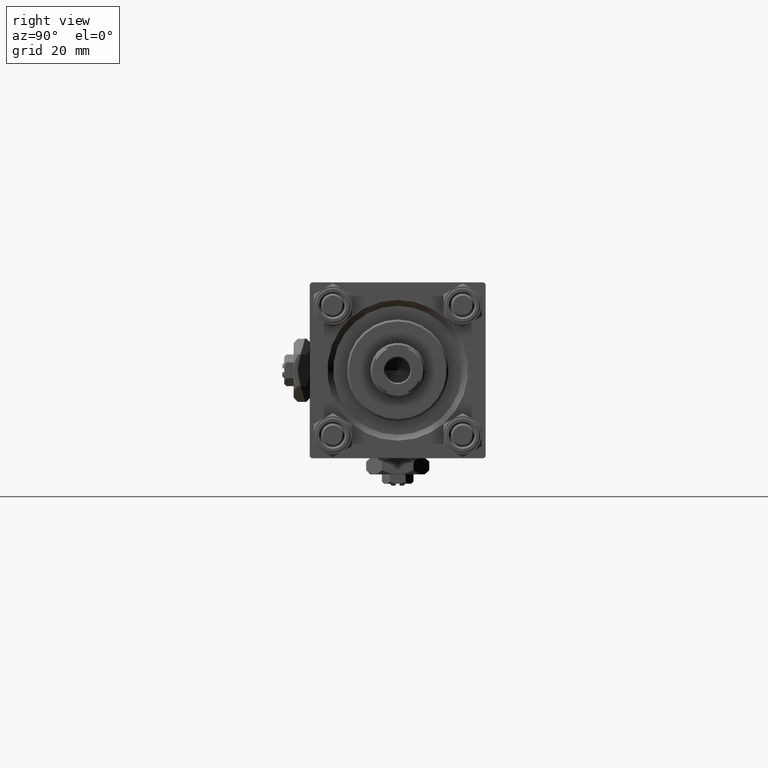
[diagram: clean part render]
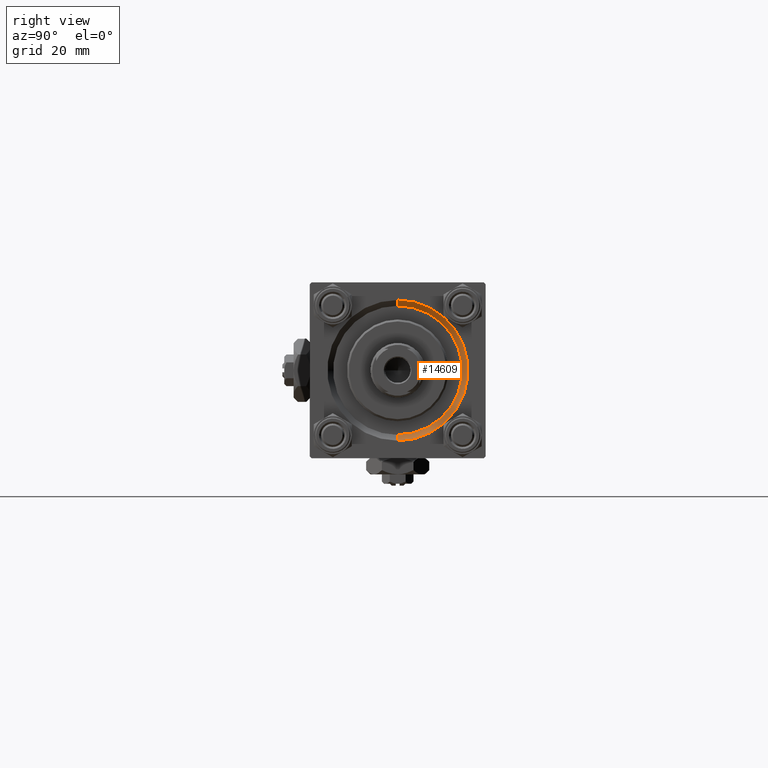
[diagram: same view with one face highlighted and labeled with its STEP entity id]
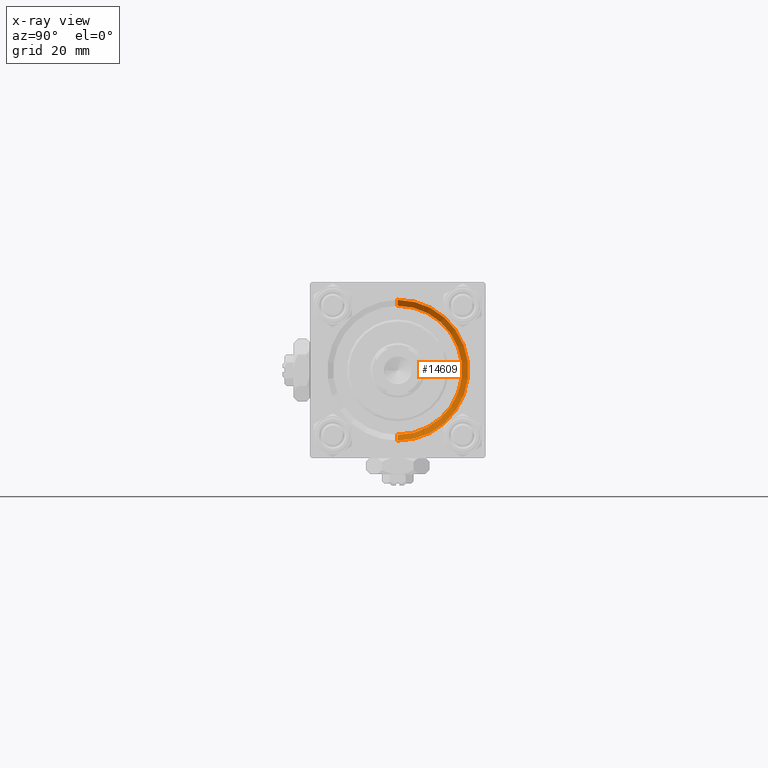
[diagram: x-ray of the same camera — body ghosted, the highlighted face saturated]
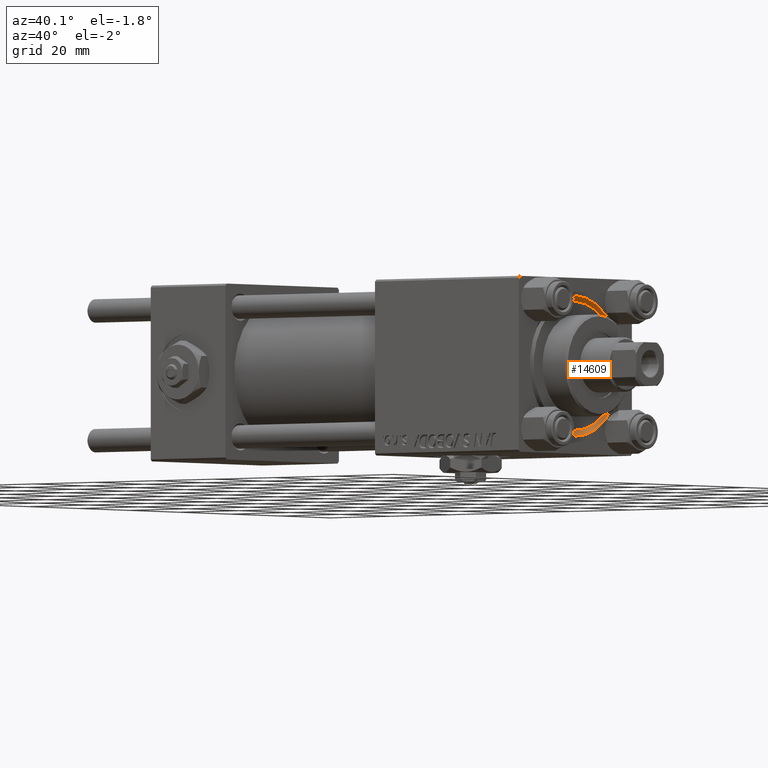
[diagram: same view with one face highlighted and labeled with its STEP entity id]
A machine part, right view. The second image highlights one B-rep face of the part: STEP entity #14609.
The next image is the same camera in x-ray: the body ghosted, the highlighted face saturated — about 0% of this face is hidden behind the body in this view.
A second angle (auxiliary view) of the same face is appended — the face is thin or edge-on in the first view.
In plain terms, the highlighted conical surface has half-angle 45 deg.
Its self-contained STEP definition (entity closure, byte-faithful):
#1218 = ORIENTED_EDGE ( 'NONE', *, *, #34498, .F. ) ;
#1876 = DIRECTION ( 'NONE',  ( 0.7071067811865474617, 0.000000000000000000, -0.7071067811865474617 ) ) ;
#2662 = DIRECTION ( 'NONE',  ( -1.000000000000000000, 0.000000000000000000, -0.000000000000000000 ) ) ;
#6371 = DIRECTION ( 'NONE',  ( 0.000000000000000000, 0.000000000000000000, 1.000000000000000000 ) ) ;
#6847 = DIRECTION ( 'NONE',  ( 0.000000000000000000, 0.000000000000000000, 1.000000000000000000 ) ) ;
#10104 = CARTESIAN_POINT ( 'NONE',  ( 123.0000000000000142, 0.000000000000000000, -18.00000000000000355 ) ) ;
#10769 = CARTESIAN_POINT ( 'NONE',  ( 121.5000000000000142, 0.000000000000000000, -16.50000000000000000 ) ) ;
#11310 = DIRECTION ( 'NONE',  ( 0.000000000000000000, 0.000000000000000000, -1.000000000000000000 ) ) ;
#12816 = VERTEX_POINT ( 'NONE', #47891 ) ;
#13551 = ORIENTED_EDGE ( 'NONE', *, *, #24981, .T. ) ;
#13787 = AXIS2_PLACEMENT_3D ( 'NONE', #41486, #49605, #6371 ) ;
#14609 = ADVANCED_FACE ( 'NONE', ( #39350 ), #25887, .F. ) ;
#17048 = CARTESIAN_POINT ( 'NONE',  ( 121.5000000000000142, 2.020667218593133100E-15, 16.50000000000000000 ) ) ;
#18937 = ORIENTED_EDGE ( 'NONE', *, *, #50540, .F. ) ;
#19075 = AXIS2_PLACEMENT_3D ( 'NONE', #22584, #2662, #6847 ) ;
#19183 = AXIS2_PLACEMENT_3D ( 'NONE', #47462, #42754, #11310 ) ;
#21588 = CIRCLE ( 'NONE', #19075, 18.00000000000000355 ) ;
#22584 = CARTESIAN_POINT ( 'NONE',  ( 123.0000000000000142, 0.000000000000000000, 0.000000000000000000 ) ) ;
#24981 = EDGE_CURVE ( 'NONE', #12816, #47217, #37776, .T. ) ;
#25703 = LINE ( 'NONE', #17048, #36540 ) ;
#25887 = CONICAL_SURFACE ( 'NONE', #19183, 16.50000000000000000, 0.7853981633974482790 ) ;
#29850 = VERTEX_POINT ( 'NONE', #43726 ) ;
#33659 = VECTOR ( 'NONE', #1876, 1000.000000000000114 ) ;
#34498 = EDGE_CURVE ( 'NONE', #12816, #35400, #49756, .T. ) ;
#35400 = VERTEX_POINT ( 'NONE', #46200 ) ;
#36540 = VECTOR ( 'NONE', #37222, 1000.000000000000114 ) ;
#37222 = DIRECTION ( 'NONE',  ( 0.7071067811865474617, 8.659560562354932858E-17, 0.7071067811865474617 ) ) ;
#37776 = LINE ( 'NONE', #10769, #33659 ) ;
#39350 = FACE_OUTER_BOUND ( 'NONE', #40513, .T. ) ;
#40513 = EDGE_LOOP ( 'NONE', ( #44478, #1218, #13551, #18937 ) ) ;
#41486 = CARTESIAN_POINT ( 'NONE',  ( 121.5000000000000142, 0.000000000000000000, 0.000000000000000000 ) ) ;
#42754 = DIRECTION ( 'NONE',  ( 1.000000000000000000, 0.000000000000000000, 0.000000000000000000 ) ) ;
#43726 = CARTESIAN_POINT ( 'NONE',  ( 123.0000000000000142, 2.204364238465235822E-15, 18.00000000000000355 ) ) ;
#44478 = ORIENTED_EDGE ( 'NONE', *, *, #46427, .F. ) ;
#46200 = CARTESIAN_POINT ( 'NONE',  ( 121.5000000000000142, 2.020667218593133100E-15, 16.50000000000000000 ) ) ;
#46427 = EDGE_CURVE ( 'NONE', #35400, #29850, #25703, .T. ) ;
#47217 = VERTEX_POINT ( 'NONE', #10104 ) ;
#47462 = CARTESIAN_POINT ( 'NONE',  ( 121.5000000000000142, 0.000000000000000000, 0.000000000000000000 ) ) ;
#47891 = CARTESIAN_POINT ( 'NONE',  ( 121.5000000000000142, 0.000000000000000000, -16.50000000000000000 ) ) ;
#49605 = DIRECTION ( 'NONE',  ( 1.000000000000000000, 0.000000000000000000, 0.000000000000000000 ) ) ;
#49756 = CIRCLE ( 'NONE', #13787, 16.50000000000000000 ) ;
#50540 = EDGE_CURVE ( 'NONE', #29850, #47217, #21588, .T. ) ;